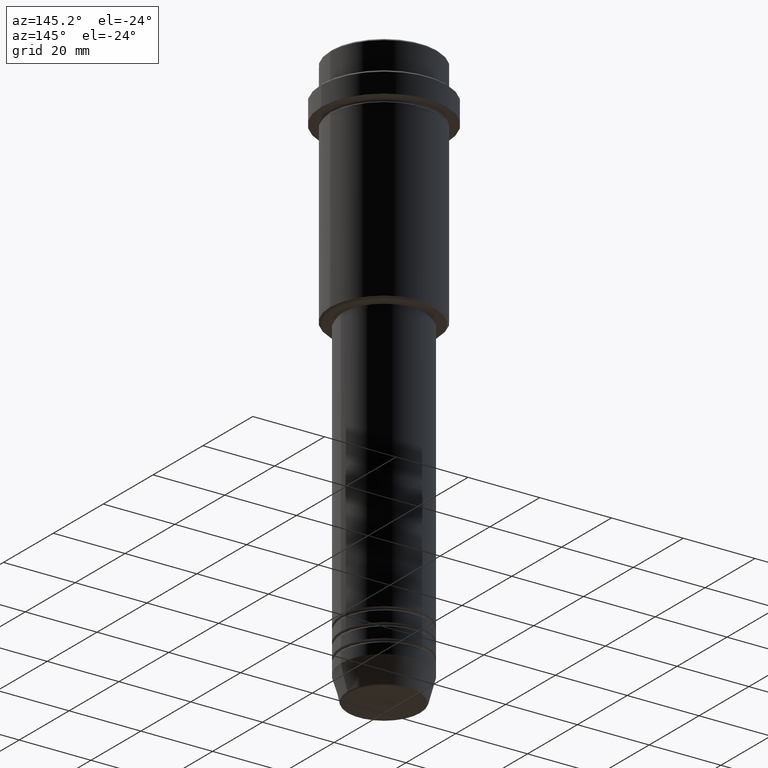
[diagram: clean part render]
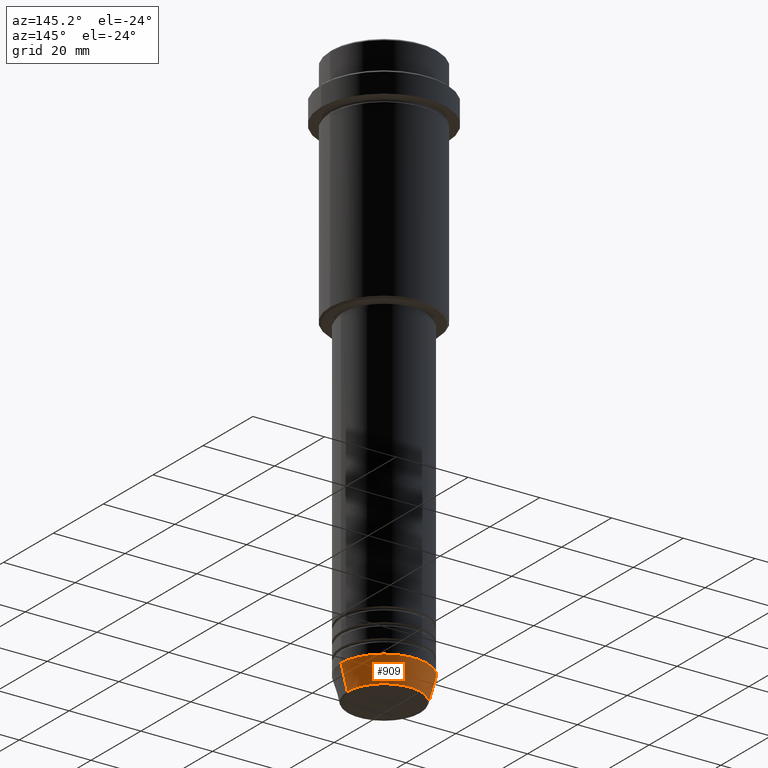
[diagram: same view with one face highlighted and labeled with its STEP entity id]
A machine part, auxiliary view. The second image highlights one B-rep face of the part: STEP entity #909.
In plain terms, the highlighted conical surface has half-angle 15 deg.
Its self-contained STEP definition (entity closure, byte-faithful):
#43 = EDGE_CURVE ( 'NONE', #782, #1339, #121, .T. ) ;
#47 = ORIENTED_EDGE ( 'NONE', *, *, #1204, .F. ) ;
#64 = DIRECTION ( 'NONE',  ( 1.000000000000000000, 0.000000000000000000, 0.000000000000000000 ) ) ;
#121 = LINE ( 'NONE', #1005, #653 ) ;
#191 = FACE_OUTER_BOUND ( 'NONE', #479, .T. ) ;
#210 = CONICAL_SURFACE ( 'NONE', #898, 12.00000000000000000, 0.2617993877991500740 ) ;
#241 = EDGE_CURVE ( 'NONE', #1268, #782, #1271, .T. ) ;
#246 = EDGE_CURVE ( 'NONE', #1180, #1339, #323, .T. ) ;
#273 = DIRECTION ( 'NONE',  ( -0.000000000000000000, -0.000000000000000000, 1.000000000000000000 ) ) ;
#276 = DIRECTION ( 'NONE',  ( 0.2588190451025213501, 0.000000000000000000, 0.9659258262890680902 ) ) ;
#323 = CIRCLE ( 'NONE', #1293, 12.00000000000000000 ) ;
#327 = CARTESIAN_POINT ( 'NONE',  ( 0.000000000000000000, 0.000000000000000000, -153.0000000000000000 ) ) ;
#359 = DIRECTION ( 'NONE',  ( -0.2588190451025213501, 3.169619151431772337E-17, 0.9659258262890680902 ) ) ;
#403 = CARTESIAN_POINT ( 'NONE',  ( -12.00000000000000000, 1.469576158976823947E-15, -153.0000000000000000 ) ) ;
#412 = DIRECTION ( 'NONE',  ( 1.000000000000000000, 0.000000000000000000, 0.000000000000000000 ) ) ;
#444 = VECTOR ( 'NONE', #276, 1000.000000000000000 ) ;
#479 = EDGE_LOOP ( 'NONE', ( #733, #824, #808, #47 ) ) ;
#622 = CARTESIAN_POINT ( 'NONE',  ( 0.000000000000000000, 0.000000000000000000, -153.0000000000000000 ) ) ;
#653 = VECTOR ( 'NONE', #359, 1000.000000000000000 ) ;
#728 = DIRECTION ( 'NONE',  ( -0.000000000000000000, -0.000000000000000000, 1.000000000000000000 ) ) ;
#733 = ORIENTED_EDGE ( 'NONE', *, *, #241, .T. ) ;
#782 = VERTEX_POINT ( 'NONE', #811 ) ;
#808 = ORIENTED_EDGE ( 'NONE', *, *, #246, .F. ) ;
#811 = CARTESIAN_POINT ( 'NONE',  ( -10.22365507213719127, 1.360806402472382744E-15, -159.6294095225512422 ) ) ;
#824 = ORIENTED_EDGE ( 'NONE', *, *, #43, .T. ) ;
#898 = AXIS2_PLACEMENT_3D ( 'NONE', #327, #1297, #412 ) ;
#909 = ADVANCED_FACE ( 'NONE', ( #191 ), #210, .T. ) ;
#947 = CARTESIAN_POINT ( 'NONE',  ( 0.000000000000000000, 0.000000000000000000, -159.6294095225512422 ) ) ;
#1005 = CARTESIAN_POINT ( 'NONE',  ( -12.00000000000000000, 1.469576158976823947E-15, -153.0000000000000000 ) ) ;
#1011 = CARTESIAN_POINT ( 'NONE',  ( 12.00000000000000000, 0.000000000000000000, -153.0000000000000000 ) ) ;
#1017 = CARTESIAN_POINT ( 'NONE',  ( 10.22365507213719127, 0.000000000000000000, -159.6294095225512422 ) ) ;
#1139 = CARTESIAN_POINT ( 'NONE',  ( 12.00000000000000000, 0.000000000000000000, -153.0000000000000000 ) ) ;
#1180 = VERTEX_POINT ( 'NONE', #1011 ) ;
#1200 = AXIS2_PLACEMENT_3D ( 'NONE', #947, #728, #1380 ) ;
#1204 = EDGE_CURVE ( 'NONE', #1268, #1180, #1345, .T. ) ;
#1268 = VERTEX_POINT ( 'NONE', #1017 ) ;
#1271 = CIRCLE ( 'NONE', #1200, 10.22365507213719127 ) ;
#1293 = AXIS2_PLACEMENT_3D ( 'NONE', #622, #273, #64 ) ;
#1297 = DIRECTION ( 'NONE',  ( -0.000000000000000000, -0.000000000000000000, 1.000000000000000000 ) ) ;
#1339 = VERTEX_POINT ( 'NONE', #403 ) ;
#1345 = LINE ( 'NONE', #1139, #444 ) ;
#1380 = DIRECTION ( 'NONE',  ( 1.000000000000000000, 0.000000000000000000, 0.000000000000000000 ) ) ;